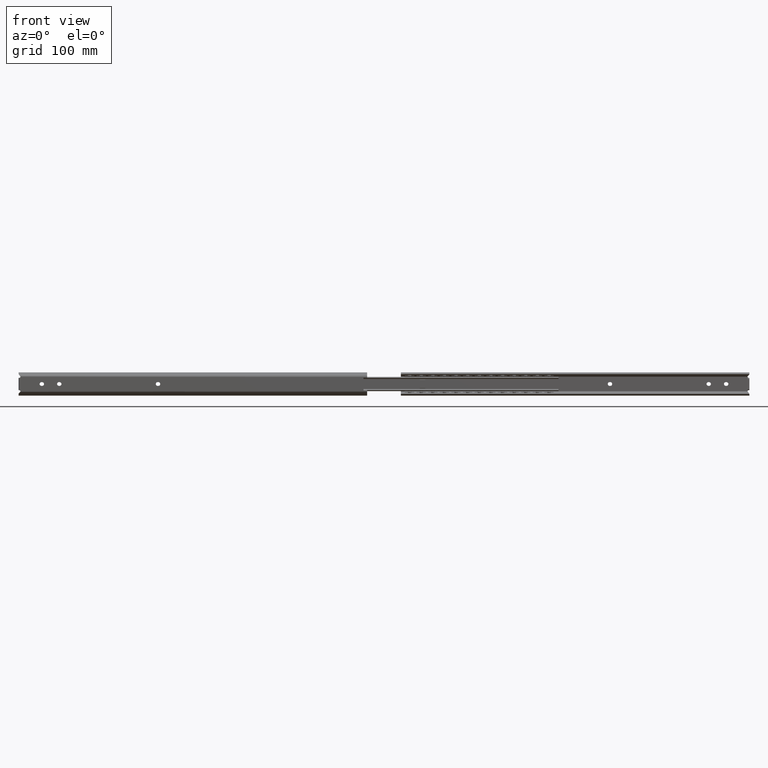
[diagram: clean part render]
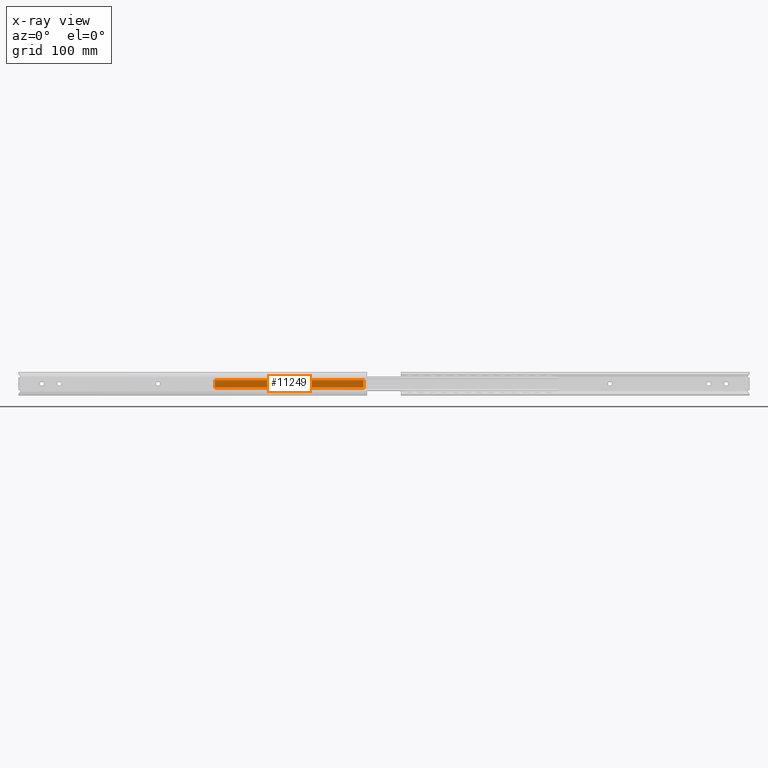
[diagram: x-ray — body ghosted, one internal face saturated and labeled with its STEP entity id]
A machine part, front view, then the same camera in x-ray: the body is ghosted and one INTERNAL B-rep face — a face not visible from any outside direction — is saturated and labeled: STEP entity #11249.
In plain terms, the highlighted face is a freeform B-spline surface patch.
Its self-contained STEP definition (entity closure, byte-faithful):
#10386=CARTESIAN_POINT('',(8.200000000000001,-4.0,3.373923690811400));
#10387=VERTEX_POINT('',#10386);
#10393=CARTESIAN_POINT('',(8.200000000000001,-4.0,-3.373923690811400));
#10394=VERTEX_POINT('',#10393);
#10395=CARTESIAN_POINT('',(8.200000000000001,-4.0,3.373923690811400));
#10396=CARTESIAN_POINT('',(8.200000000000001,-4.0,-3.373923690811400));
#10397=QUASI_UNIFORM_CURVE('',1,(#10395,#10396),.UNSPECIFIED.,.F.,.U.);
#10398=EDGE_CURVE('',#10387,#10394,#10397,.T.);
#10668=CARTESIAN_POINT('',(136.199999999999990,-4.0,-3.373923690811400));
#10669=VERTEX_POINT('',#10668);
#10675=CARTESIAN_POINT('',(136.199999999999990,-4.0,3.373923690811400));
#10676=VERTEX_POINT('',#10675);
#10677=CARTESIAN_POINT('',(136.199999999999990,-4.0,3.373923690811400));
#10678=CARTESIAN_POINT('',(136.199999999999990,-4.0,-3.373923690811400));
#10679=QUASI_UNIFORM_CURVE('',1,(#10677,#10678),.UNSPECIFIED.,.F.,.U.);
#10680=EDGE_CURVE('',#10676,#10669,#10679,.T.);
#11224=CARTESIAN_POINT('',(136.199999999999990,-4.0,-3.373923690811400));
#11225=CARTESIAN_POINT('',(8.200000000000001,-4.0,-3.373923690811400));
#11226=QUASI_UNIFORM_CURVE('',1,(#11224,#11225),.UNSPECIFIED.,.F.,.U.);
#11227=EDGE_CURVE('',#10669,#10394,#11226,.T.);
#11234=CARTESIAN_POINT('',(1.806399503822324,-4.0,-3.710978781132747));
#11235=CARTESIAN_POINT('',(1.806399503822323,-4.0,3.710978841463203));
#11236=CARTESIAN_POINT('',(142.593593629722590,-4.0,-3.710978781132747));
#11237=CARTESIAN_POINT('',(142.593593629722510,-4.0,3.710978841463203));
#11238=B_SPLINE_SURFACE_WITH_KNOTS('',1,1,((#11234,#11236),(#11235,#11237)),.UNSPECIFIED.,.F.,.F.,.U.,(2,2),(2,2),(0.0,7.421957622595951),(0.0,140.787194125900210),.UNSPECIFIED.);
#11239=ORIENTED_EDGE('',*,*,#10398,.F.);
#11240=CARTESIAN_POINT('',(136.199999999999990,-4.0,3.373923690811400));
#11241=CARTESIAN_POINT('',(8.200000000000001,-4.0,3.373923690811400));
#11242=QUASI_UNIFORM_CURVE('',1,(#11240,#11241),.UNSPECIFIED.,.F.,.U.);
#11243=EDGE_CURVE('',#10676,#10387,#11242,.T.);
#11244=ORIENTED_EDGE('',*,*,#11243,.F.);
#11245=ORIENTED_EDGE('',*,*,#10680,.T.);
#11246=ORIENTED_EDGE('',*,*,#11227,.T.);
#11247=EDGE_LOOP('',(#11239,#11244,#11245,#11246));
#11248=FACE_OUTER_BOUND('',#11247,.T.);
#11249=ADVANCED_FACE('',(#11248),#11238,.T.);